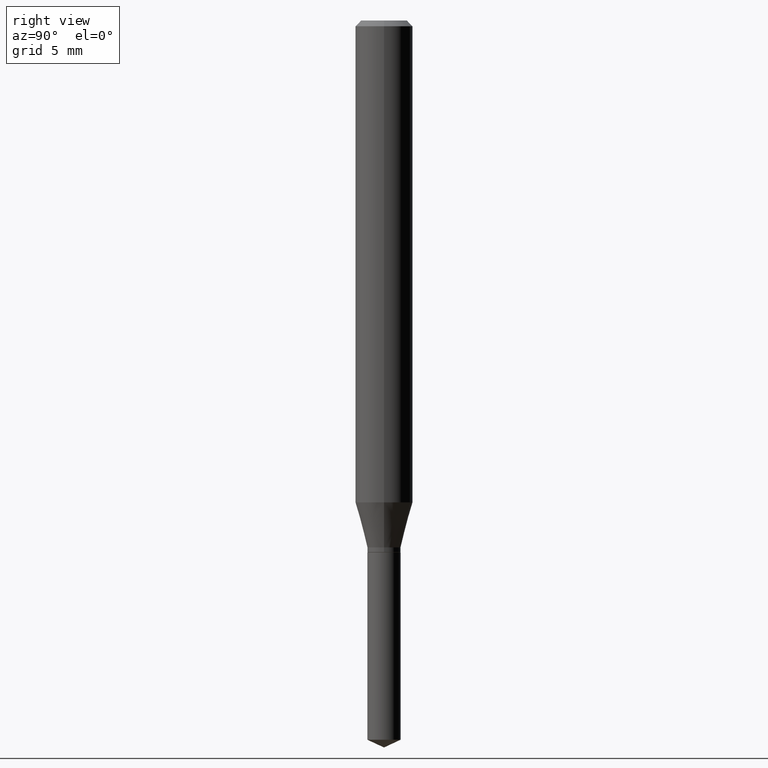
[diagram: clean part render]
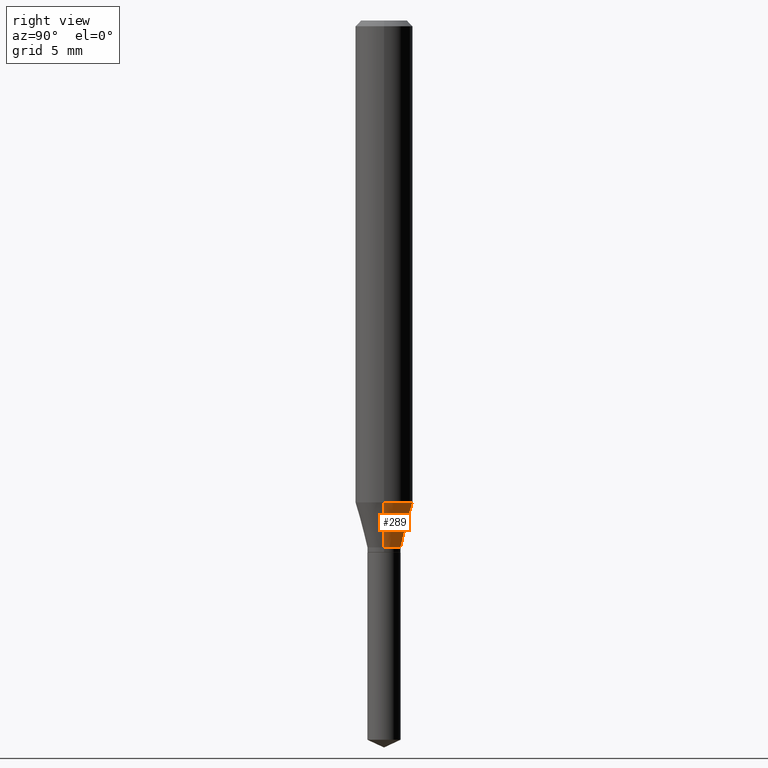
[diagram: same view with one face highlighted and labeled with its STEP entity id]
A machine part, right view. The second image highlights one B-rep face of the part: STEP entity #289.
In plain terms, the highlighted conical surface has half-angle 15 deg.
Its self-contained STEP definition (entity closure, byte-faithful):
#8 = ORIENTED_EDGE ( 'NONE', *, *, #316, .T. ) ;
#10 = VECTOR ( 'NONE', #132, 39.37007874015748143 ) ;
#14 = EDGE_CURVE ( 'NONE', #263, #112, #191, .T. ) ;
#52 = CARTESIAN_POINT ( 'NONE',  ( 0.03425000000000000266, -4.024630539284492888E-15, -1.084199999999999831 ) ) ;
#58 = CARTESIAN_POINT ( 'NONE',  ( 2.651377279665924456E-29, -3.785464067573738222E-15, -1.084199999999999831 ) ) ;
#61 = AXIS2_PLACEMENT_3D ( 'NONE', #421, #348, #383 ) ;
#79 = ORIENTED_EDGE ( 'NONE', *, *, #457, .F. ) ;
#112 = VERTEX_POINT ( 'NONE', #166 ) ;
#132 = DIRECTION ( 'NONE',  ( -0.2588190451025211281, 5.211531920934548675E-15, 0.9659258262890682012 ) ) ;
#134 = LINE ( 'NONE', #420, #10 ) ;
#147 = ORIENTED_EDGE ( 'NONE', *, *, #14, .F. ) ;
#166 = CARTESIAN_POINT ( 'NONE',  ( 0.05905000000000011628, -3.874654447085129715E-15, -0.9916451399722914228 ) ) ;
#171 = CARTESIAN_POINT ( 'NONE',  ( -0.05905000000000011628, -3.042735015501414908E-15, -0.9916451399722914228 ) ) ;
#176 = DIRECTION ( 'NONE',  ( -2.445468806185136597E-29, 3.491481338843145583E-15, 1.000000000000000000 ) ) ;
#182 = FACE_OUTER_BOUND ( 'NONE', #199, .T. ) ;
#183 = AXIS2_PLACEMENT_3D ( 'NONE', #58, #176, #260 ) ;
#191 = LINE ( 'NONE', #205, #436 ) ;
#199 = EDGE_LOOP ( 'NONE', ( #323, #8, #79, #147 ) ) ;
#205 = CARTESIAN_POINT ( 'NONE',  ( 0.03425000000000000266, -4.024630539284492888E-15, -1.084199999999999831 ) ) ;
#206 = VERTEX_POINT ( 'NONE', #299 ) ;
#257 = CARTESIAN_POINT ( 'NONE',  ( 2.425037256607332168E-29, -3.462310500967754795E-15, -0.9916451399722914228 ) ) ;
#260 = DIRECTION ( 'NONE',  ( 1.000000000000000000, -6.982962677686268288E-15, 0.000000000000000000 ) ) ;
#263 = VERTEX_POINT ( 'NONE', #52 ) ;
#266 = CIRCLE ( 'NONE', #183, 0.03425000000000000266 ) ;
#289 = ADVANCED_FACE ( 'NONE', ( #182 ), #466, .T. ) ;
#299 = CARTESIAN_POINT ( 'NONE',  ( -0.03425000000000000266, -3.559211439136235413E-15, -1.084199999999999831 ) ) ;
#301 = AXIS2_PLACEMENT_3D ( 'NONE', #257, #413, #410 ) ;
#316 = EDGE_CURVE ( 'NONE', #206, #404, #134, .T. ) ;
#323 = ORIENTED_EDGE ( 'NONE', *, *, #419, .T. ) ;
#326 = CIRCLE ( 'NONE', #301, 0.05905000000000011628 ) ;
#348 = DIRECTION ( 'NONE',  ( -2.445468806185136597E-29, 3.491481338843145583E-15, 1.000000000000000000 ) ) ;
#361 = DIRECTION ( 'NONE',  ( 0.2588190451025211281, 1.565188264969623940E-15, 0.9659258262890682012 ) ) ;
#383 = DIRECTION ( 'NONE',  ( 1.000000000000000000, -6.982962677686268288E-15, 0.000000000000000000 ) ) ;
#404 = VERTEX_POINT ( 'NONE', #171 ) ;
#410 = DIRECTION ( 'NONE',  ( 1.000000000000000000, -6.982962677686266711E-15, 0.000000000000000000 ) ) ;
#413 = DIRECTION ( 'NONE',  ( -2.445468806185136597E-29, 3.491481338843145583E-15, 1.000000000000000000 ) ) ;
#419 = EDGE_CURVE ( 'NONE', #263, #206, #266, .T. ) ;
#420 = CARTESIAN_POINT ( 'NONE',  ( -0.03425000000000000266, -3.542103180575903889E-15, -1.084199999999999831 ) ) ;
#421 = CARTESIAN_POINT ( 'NONE',  ( 2.651377279665924456E-29, -3.785464067573738222E-15, -1.084199999999999831 ) ) ;
#436 = VECTOR ( 'NONE', #361, 39.37007874015748143 ) ;
#457 = EDGE_CURVE ( 'NONE', #112, #404, #326, .T. ) ;
#466 = CONICAL_SURFACE ( 'NONE', #61, 0.03425000000000000266, 0.2617993877991497964 ) ;